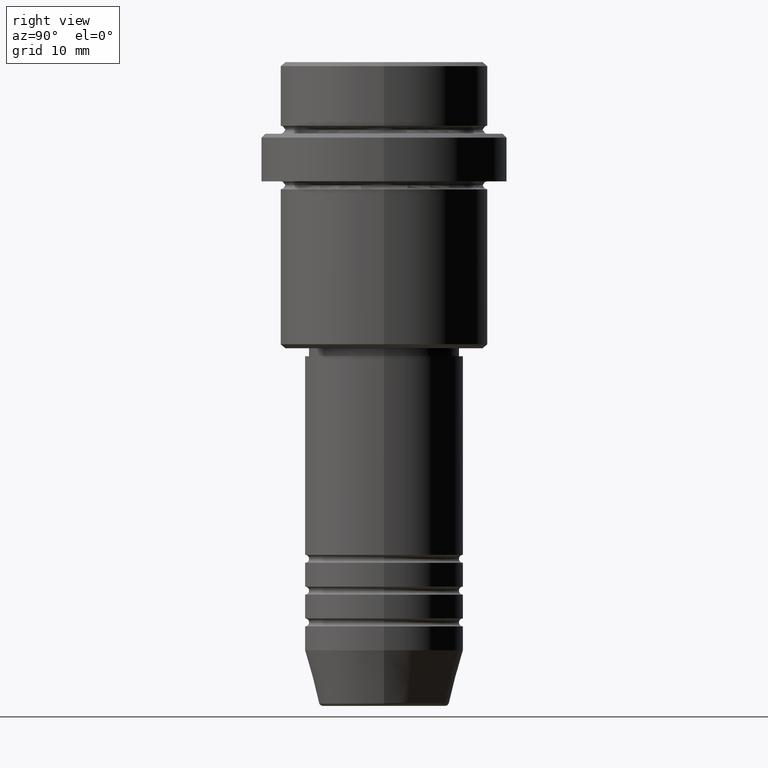
[diagram: clean part render]
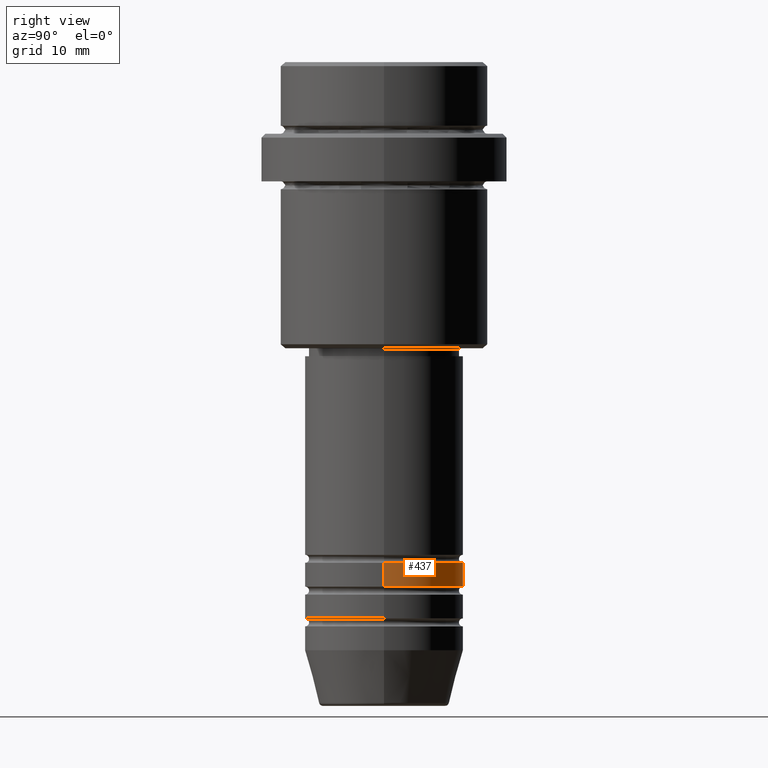
[diagram: same view with one face highlighted and labeled with its STEP entity id]
A machine part, right view. The second image highlights one B-rep face of the part: STEP entity #437.
In plain terms, the highlighted cylindrical surface (partial cylindrical patch) has radius 10 mm, axis along (-0, -0, 1).
Its self-contained STEP definition (entity closure, byte-faithful):
#31 = CARTESIAN_POINT ( 'NONE',  ( -10.00000000000000000, 1.224646799147353256E-15, -65.99999999999988631 ) ) ;
#50 = DIRECTION ( 'NONE',  ( -0.000000000000000000, -0.000000000000000000, 1.000000000000000000 ) ) ;
#55 = CARTESIAN_POINT ( 'NONE',  ( -10.00000000000000000, 1.224646799147353256E-15, 0.000000000000000000 ) ) ;
#69 = CYLINDRICAL_SURFACE ( 'NONE', #1197, 10.00000000000000000 ) ;
#84 = CARTESIAN_POINT ( 'NONE',  ( 10.00000000000000000, 0.000000000000000000, 0.000000000000000000 ) ) ;
#217 = CIRCLE ( 'NONE', #262, 10.00000000000000000 ) ;
#262 = AXIS2_PLACEMENT_3D ( 'NONE', #336, #460, #856 ) ;
#294 = EDGE_LOOP ( 'NONE', ( #560, #645, #322, #1080 ) ) ;
#297 = AXIS2_PLACEMENT_3D ( 'NONE', #1018, #50, #495 ) ;
#322 = ORIENTED_EDGE ( 'NONE', *, *, #489, .F. ) ;
#336 = CARTESIAN_POINT ( 'NONE',  ( 0.000000000000000000, 0.000000000000000000, -65.99999999999988631 ) ) ;
#368 = FACE_OUTER_BOUND ( 'NONE', #294, .T. ) ;
#437 = ADVANCED_FACE ( 'NONE', ( #368 ), #69, .T. ) ;
#460 = DIRECTION ( 'NONE',  ( -0.000000000000000000, -0.000000000000000000, 1.000000000000000000 ) ) ;
#484 = CIRCLE ( 'NONE', #297, 10.00000000000000000 ) ;
#489 = EDGE_CURVE ( 'NONE', #623, #590, #484, .T. ) ;
#495 = DIRECTION ( 'NONE',  ( 1.000000000000000000, 0.000000000000000000, 0.000000000000000000 ) ) ;
#560 = ORIENTED_EDGE ( 'NONE', *, *, #1265, .T. ) ;
#572 = DIRECTION ( 'NONE',  ( -0.000000000000000000, -0.000000000000000000, 1.000000000000000000 ) ) ;
#578 = DIRECTION ( 'NONE',  ( 1.000000000000000000, 0.000000000000000000, 0.000000000000000000 ) ) ;
#590 = VERTEX_POINT ( 'NONE', #720 ) ;
#623 = VERTEX_POINT ( 'NONE', #1171 ) ;
#645 = ORIENTED_EDGE ( 'NONE', *, *, #1361, .T. ) ;
#656 = CARTESIAN_POINT ( 'NONE',  ( 10.00000000000000000, 0.000000000000000000, -65.99999999999988631 ) ) ;
#685 = VECTOR ( 'NONE', #956, 1000.000000000000000 ) ;
#720 = CARTESIAN_POINT ( 'NONE',  ( -10.00000000000000000, 1.224646799147353256E-15, -62.99999999999988631 ) ) ;
#789 = VERTEX_POINT ( 'NONE', #656 ) ;
#856 = DIRECTION ( 'NONE',  ( 1.000000000000000000, 0.000000000000000000, 0.000000000000000000 ) ) ;
#915 = LINE ( 'NONE', #55, #1203 ) ;
#956 = DIRECTION ( 'NONE',  ( -0.000000000000000000, -0.000000000000000000, 1.000000000000000000 ) ) ;
#1005 = DIRECTION ( 'NONE',  ( -0.000000000000000000, -0.000000000000000000, 1.000000000000000000 ) ) ;
#1018 = CARTESIAN_POINT ( 'NONE',  ( 0.000000000000000000, 0.000000000000000000, -62.99999999999988631 ) ) ;
#1080 = ORIENTED_EDGE ( 'NONE', *, *, #1120, .F. ) ;
#1120 = EDGE_CURVE ( 'NONE', #789, #623, #1299, .T. ) ;
#1171 = CARTESIAN_POINT ( 'NONE',  ( 10.00000000000000000, 0.000000000000000000, -62.99999999999988631 ) ) ;
#1197 = AXIS2_PLACEMENT_3D ( 'NONE', #1381, #572, #578 ) ;
#1203 = VECTOR ( 'NONE', #1005, 1000.000000000000000 ) ;
#1262 = VERTEX_POINT ( 'NONE', #31 ) ;
#1265 = EDGE_CURVE ( 'NONE', #789, #1262, #217, .T. ) ;
#1299 = LINE ( 'NONE', #84, #685 ) ;
#1361 = EDGE_CURVE ( 'NONE', #1262, #590, #915, .T. ) ;
#1381 = CARTESIAN_POINT ( 'NONE',  ( 0.000000000000000000, 0.000000000000000000, 0.000000000000000000 ) ) ;